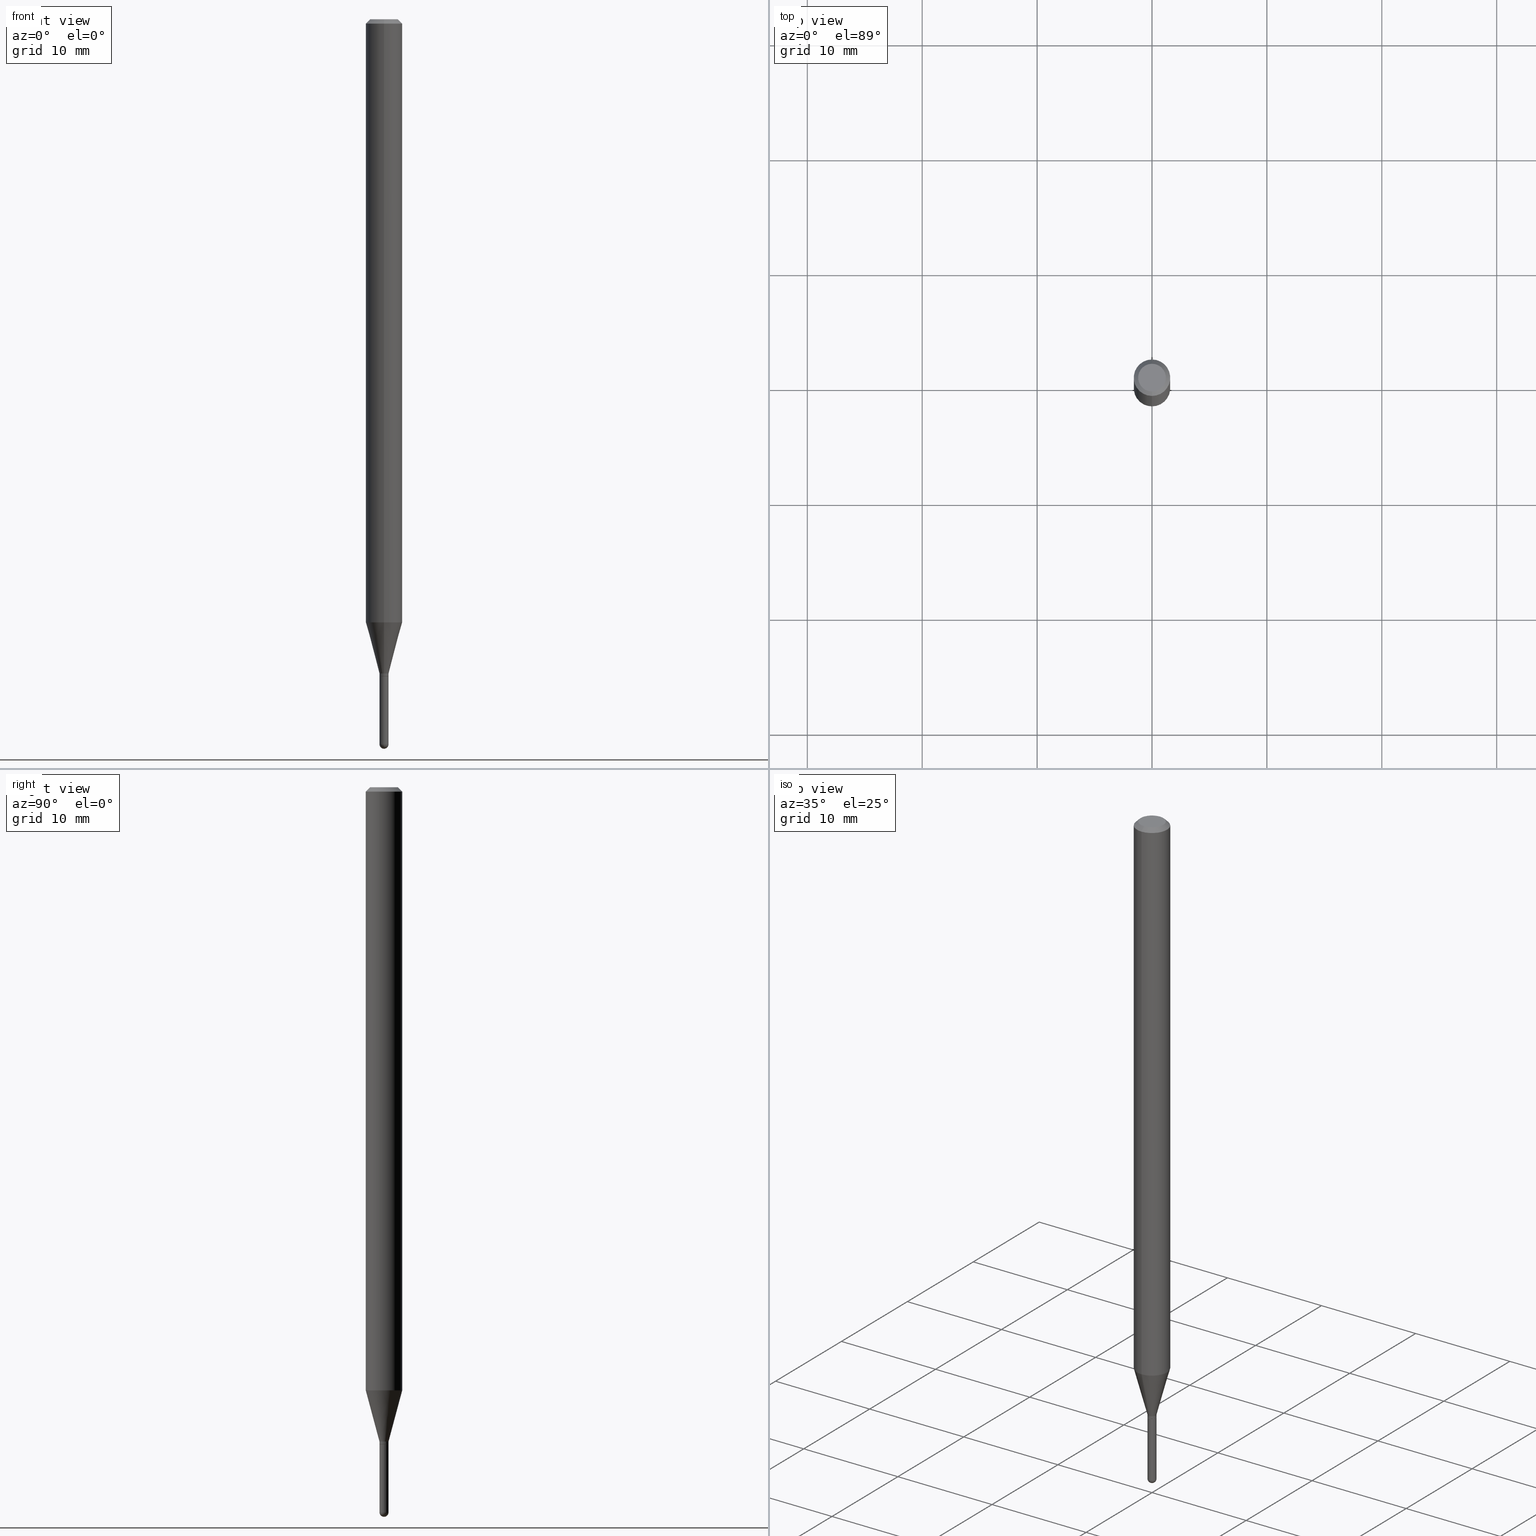
[diagram: canonical four-view strip — front | top / right | iso, engineering-drawing reading convention]
A machine part, canonical four-view strip (front | top / right | iso — engineering-drawing reading convention). The complete STEP part file that produces these views, byte-faithful:
ISO-10303-21;
HEADER;
FILE_DESCRIPTION (( 'STEP AP203' ),
    '1' );
FILE_NAME ('00984.STEP',
    '2024-03-07T19:28:21',
    ( '' ),
    ( '' ),
    'SwSTEP 2.0',
    'SolidWorks 2023',
    '' );
FILE_SCHEMA (( 'CONFIG_CONTROL_DESIGN' ));
ENDSEC;

DATA;
#1 = CARTESIAN_POINT ( 'NONE',  ( 5.507196632781506660E-29, -7.862814713070911262E-15, -2.251999999999999780 ) ) ;
#2 = ORIENTED_EDGE ( 'NONE', *, *, #315, .F. ) ;
#3 = DIRECTION ( 'NONE',  ( -2.445468806185136597E-29, 3.491481338843145583E-15, 1.000000000000000000 ) ) ;
#4 = FACE_OUTER_BOUND ( 'NONE', #159, .T. ) ;
#5 = EDGE_CURVE ( 'NONE', #226, #228, #463, .T. ) ;
#6 = CIRCLE ( 'NONE', #36, 0.01549999999999999989 ) ;
#7 = EDGE_LOOP ( 'NONE', ( #294, #34 ) ) ;
#8 = DIRECTION ( 'NONE',  ( 6.982962677686265922E-15, 1.000000000000000000, -3.491480778450671606E-15 ) ) ;
#9 = DIRECTION ( 'NONE',  ( -2.445469197505109755E-29, 3.491480778450671606E-15, 1.000000000000000000 ) ) ;
#10 = FACE_OUTER_BOUND ( 'NONE', #424, .T. ) ;
#11 = DIRECTION ( 'NONE',  ( -1.000000000000000000, 6.982962677686265922E-15, -4.883557194083112340E-29 ) ) ;
#12 = CARTESIAN_POINT ( 'NONE',  ( 0.01550000000000000509, -8.376936602219418168E-15, -2.484500000000000153 ) ) ;
#13 = VECTOR ( 'NONE', #297, 39.37007874015748143 ) ;
#14 = FACE_OUTER_BOUND ( 'NONE', #145, .T. ) ;
#15 = CARTESIAN_POINT ( 'NONE',  ( 0.01549999999999999989, -7.971051896578900839E-15, -2.252000000000000224 ) ) ;
#16 = CARTESIAN_POINT ( 'NONE',  ( 3.668203796257666962E-31, -5.237221167676010219E-17, -0.01500000000000000812 ) ) ;
#17 = COORDINATED_UNIVERSAL_TIME_OFFSET ( 5, 0, .BEHIND. ) ;
#18 = CIRCLE ( 'NONE', #99, 0.06250000000000000000 ) ;
#19 = CIRCLE ( 'NONE', #475, 0.01549999999999965121 ) ;
#20 = CARTESIAN_POINT ( 'NONE',  ( 3.840629472727447874E-16, 0.04749999999999999362, -1.747056831868805136E-16 ) ) ;
#21 = DATE_AND_TIME ( #383, #365 ) ;
#22 = ORIENTED_EDGE ( 'NONE', *, *, #423, .T. ) ;
#23 = VECTOR ( 'NONE', #117, 39.37007874015748143 ) ;
#24 =( GEOMETRIC_REPRESENTATION_CONTEXT ( 3 ) GLOBAL_UNCERTAINTY_ASSIGNED_CONTEXT ( ( #84 ) ) GLOBAL_UNIT_ASSIGNED_CONTEXT ( ( #449, #482, #210 ) ) REPRESENTATION_CONTEXT ( 'NONE', 'WORKASPACE' ) );
#25 = CYLINDRICAL_SURFACE ( 'NONE', #374, 0.06250000000000000000 ) ;
#26 = ORIENTED_EDGE ( 'NONE', *, *, #249, .F. ) ;
#27 = PERSON_AND_ORGANIZATION_ROLE ( 'design_owner' ) ;
#28 = ADVANCED_FACE ( 'NONE', ( #288 ), #381, .T. ) ;
#29 = CARTESIAN_POINT ( 'NONE',  ( 6.075767248966972494E-29, -8.674585386355795965E-15, -2.484500000000000153 ) ) ;
#30 = ORIENTED_EDGE ( 'NONE', *, *, #359, .F. ) ;
#31 = EDGE_LOOP ( 'NONE', ( #276, #108, #357, #2 ) ) ;
#32 = CARTESIAN_POINT ( 'NONE',  ( -0.01550000000000000162, 1.101341240428155403E-16, -7.624349389895103934E-31 ) ) ;
#33 = CARTESIAN_POINT ( 'NONE',  ( 1.101341240428677408E-16, 0.01549999999999173740, -2.251500000000000501 ) ) ;
#34 = ORIENTED_EDGE ( 'NONE', *, *, #359, .T. ) ;
#35 = AXIS2_PLACEMENT_3D ( 'NONE', #1, #75, #112 ) ;
#36 = AXIS2_PLACEMENT_3D ( 'NONE', #332, #247, #492 ) ;
#37 = CARTESIAN_POINT ( 'NONE',  ( 0.01550000000000000162, -1.082359215041371409E-16, 7.558074002483700794E-31 ) ) ;
#38 = ADVANCED_FACE ( 'NONE', ( #331 ), #451, .T. ) ;
#39 = DIRECTION ( 'NONE',  ( 1.000000000000000000, -6.982962677686266711E-15, 4.876176775795935232E-29 ) ) ;
#40 = CARTESIAN_POINT ( 'NONE',  ( -3.773273898774340269E-16, -0.04749999999999999362, 1.569849907659332327E-16 ) ) ;
#41 = PERSON_AND_ORGANIZATION_ROLE ( 'creator' ) ;
#42 = VERTEX_POINT ( 'NONE', #15 ) ;
#43 = PLANE ( 'NONE',  #35 ) ;
#44 = VECTOR ( 'NONE', #366, 39.37007874015748143 ) ;
#45 = EDGE_LOOP ( 'NONE', ( #64, #295, #353, #387 ) ) ;
#46 = CC_DESIGN_APPROVAL ( #358, ( #312 ) ) ;
#47 = CARTESIAN_POINT ( 'NONE',  ( 5.482741940806456285E-29, -7.827899905286405489E-15, -2.241999999999999993 ) ) ;
#48 = APPROVAL_DATE_TIME ( #479, #395 ) ;
#49 = DIRECTION ( 'NONE',  ( -6.982962677686265922E-15, -1.000000000000000000, 4.370956789862821150E-15 ) ) ;
#50 = DIRECTION ( 'NONE',  ( -2.445469197505109755E-29, 3.491480778450671606E-15, 1.000000000000000000 ) ) ;
#51 = CARTESIAN_POINT ( 'NONE',  ( 6.074441741218743853E-29, -8.676483588894474032E-15, -2.484500000000000153 ) ) ;
#52 = AXIS2_PLACEMENT_3D ( 'NONE', #275, #428, #227 ) ;
#53 = CIRCLE ( 'NONE', #158, 0.01549999999999993917 ) ;
#54 = ADVANCED_FACE ( 'NONE', ( #478 ), #473, .T. ) ;
#55 = ORIENTED_EDGE ( 'NONE', *, *, #173, .F. ) ;
#56 = CARTESIAN_POINT ( 'NONE',  ( 3.668203796257666962E-31, -5.237221167676010219E-17, -0.01500000000000000812 ) ) ;
#57 = DIRECTION ( 'NONE',  ( -6.982962677686265922E-15, -1.000000000000000000, 3.483106191921935554E-15 ) ) ;
#58 = SECURITY_CLASSIFICATION_LEVEL ( 'unclassified' ) ;
#59 = LOCAL_TIME ( 14, 28, 21.00000000000000000, #138 ) ;
#60 = CC_DESIGN_PERSON_AND_ORGANIZATION_ASSIGNMENT ( #342, #41, ( #335 ) ) ;
#61 = MANIFOLD_SOLID_BREP ( 'Body-Move/Copy2[1]', #132 ) ;
#62 = ORIENTED_EDGE ( 'NONE', *, *, #76, .T. ) ;
#63 = VERTEX_POINT ( 'NONE', #12 ) ;
#64 = ORIENTED_EDGE ( 'NONE', *, *, #349, .T. ) ;
#65 = CONICAL_SURFACE ( 'NONE', #178, 0.06250000000000000000, 0.7853981633974483900 ) ;
#66 = ORGANIZATION ( 'UNSPECIFIED', 'UNSPECIFIED', '' ) ;
#67 = VERTEX_POINT ( 'NONE', #123 ) ;
#68 = LINE ( 'NONE', #37, #13 ) ;
#69 = ORIENTED_EDGE ( 'NONE', *, *, #5, .F. ) ;
#70 = SPHERICAL_SURFACE ( 'NONE', #311, 0.01549999999999993917 ) ;
#71 = CARTESIAN_POINT ( 'NONE',  ( -4.364351673553912750E-16, -0.06250000000000005551, -0.01499999999999979128 ) ) ;
#72 = ADVANCED_FACE ( 'NONE', ( #281 ), #209, .T. ) ;
#73 = PRODUCT ( '00984', '00984', '', ( #324 ) ) ;
#74 = CONICAL_SURFACE ( 'NONE', #180, 0.01499999999999999944, 0.7853981633974739252 ) ;
#75 = DIRECTION ( 'NONE',  ( -2.445469197505109475E-29, 3.491480778450671606E-15, 1.000000000000000000 ) ) ;
#76 = EDGE_CURVE ( 'NONE', #67, #224, #116, .T. ) ;
#77 = CYLINDRICAL_SURFACE ( 'NONE', #255, 0.06250000000000000000 ) ;
#78 = ORIENTED_EDGE ( 'NONE', *, *, #219, .F. ) ;
#79 = ORIENTED_EDGE ( 'NONE', *, *, #249, .T. ) ;
#80 = APPLICATION_CONTEXT ( 'configuration controlled 3d designs of mechanical parts and assemblies' ) ;
#81 = CC_DESIGN_PERSON_AND_ORGANIZATION_ASSIGNMENT ( #217, #27, ( #73 ) ) ;
#82 = CLOSED_SHELL ( 'NONE', ( #38, #499, #152, #202, #28, #457, #412, #54, #441, #216, #425, #163 ) ) ;
#83 = VECTOR ( 'NONE', #270, 39.37007874015748143 ) ;
#84 = UNCERTAINTY_MEASURE_WITH_UNIT (LENGTH_MEASURE( 1.000000000000000082E-05 ), #449, 'distance_accuracy_value', 'NONE');
#85 = DIRECTION ( 'NONE',  ( -2.445468806185136597E-29, 3.491481338843145583E-15, 1.000000000000000000 ) ) ;
#86 = DIMENSIONAL_EXPONENTS ( 1.000000000000000000, 0.000000000000000000, 0.000000000000000000, 0.000000000000000000, 0.000000000000000000, 0.000000000000000000, 0.000000000000000000 ) ;
#87 = DIRECTION ( 'NONE',  ( 1.000000000000000000, 0.000000000000000000, 0.000000000000000000 ) ) ;
#88 = CARTESIAN_POINT ( 'NONE',  ( 5.507196632781506660E-29, -7.862814713070911262E-15, -2.251999999999999780 ) ) ;
#89 = CARTESIAN_POINT ( 'NONE',  ( 4.440892098501129061E-16, 0.06249999999999276967, -2.066593612044262507 ) ) ;
#90 = DIRECTION ( 'NONE',  ( 0.000000000000000000, 0.000000000000000000, 1.000000000000000000 ) ) ;
#91 = CARTESIAN_POINT ( 'NONE',  ( 1.101341240428130259E-16, 0.01549999999999964947, -5.411795206598418415E-17 ) ) ;
#92 = PERSON_AND_ORGANIZATION ( #326, #66 ) ;
#93 = CIRCLE ( 'NONE', #187, 0.01549999999999965121 ) ;
#94 = CARTESIAN_POINT ( 'NONE',  ( 5.507196632781506660E-29, -7.862814713070911262E-15, -2.251999999999999780 ) ) ;
#95 = DIRECTION ( 'NONE',  ( -7.105427357601001070E-15, -1.000000000000000000, 0.000000000000000000 ) ) ;
#96 = FACE_OUTER_BOUND ( 'NONE', #460, .T. ) ;
#97 = SHAPE_DEFINITION_REPRESENTATION ( #186, #348 ) ;
#98 = FACE_OUTER_BOUND ( 'NONE', #401, .T. ) ;
#99 = AXIS2_PLACEMENT_3D ( 'NONE', #480, #207, #322 ) ;
#100 = LOCAL_TIME ( 14, 28, 21.00000000000000000, #17 ) ;
#101 = ORIENTED_EDGE ( 'NONE', *, *, #468, .T. ) ;
#102 = DATE_AND_TIME ( #343, #100 ) ;
#103 = ORIENTED_EDGE ( 'NONE', *, *, #135, .T. ) ;
#104 = ORIENTED_EDGE ( 'NONE', *, *, #253, .T. ) ;
#105 = ORIENTED_EDGE ( 'NONE', *, *, #147, .T. ) ;
#106 = DIRECTION ( 'NONE',  ( 1.000000000000000000, -6.982962677686299843E-15, 0.000000000000000000 ) ) ;
#107 = CARTESIAN_POINT ( 'NONE',  ( -4.287811248607203282E-16, -0.06250000000000005551, -0.01499999999999979128 ) ) ;
#108 = ORIENTED_EDGE ( 'NONE', *, *, #488, .T. ) ;
#109 = FACE_OUTER_BOUND ( 'NONE', #504, .T. ) ;
#110 = EDGE_LOOP ( 'NONE', ( #436, #237, #298, #509 ) ) ;
#111 = EDGE_CURVE ( 'NONE', #351, #384, #201, .T. ) ;
#112 = DIRECTION ( 'NONE',  ( -6.982962677686265922E-15, -1.000000000000000000, 3.491480778450671606E-15 ) ) ;
#113 = CARTESIAN_POINT ( 'NONE',  ( 3.316907271900976096E-16, 0.04749999999999999362, -1.702755100816436749E-16 ) ) ;
#114 = DIRECTION ( 'NONE',  ( 2.445469197505109475E-29, -3.491480778450671606E-15, -1.000000000000000000 ) ) ;
#115 = ORIENTED_EDGE ( 'NONE', *, *, #111, .F. ) ;
#116 = CIRCLE ( 'NONE', #214, 0.01549999999999964947 ) ;
#117 = DIRECTION ( 'NONE',  ( -2.445468806185136877E-29, 3.491481338843145188E-15, 1.000000000000000000 ) ) ;
#118 = ORIENTED_EDGE ( 'NONE', *, *, #265, .F. ) ;
#119 = CARTESIAN_POINT ( 'NONE',  ( 6.075767248966972494E-29, -8.674585386355795965E-15, -2.484500000000000153 ) ) ;
#120 = EDGE_CURVE ( 'NONE', #233, #476, #93, .T. ) ;
#121 = DIRECTION ( 'NONE',  ( -2.445469197505109755E-29, 3.491480778450671606E-15, 1.000000000000000000 ) ) ;
#122 = AXIS2_PLACEMENT_3D ( 'NONE', #94, #370, #250 ) ;
#123 = CARTESIAN_POINT ( 'NONE',  ( 2.771116669464905946E-16, 0.01549999999999181893, -2.241999999999999993 ) ) ;
#124 = CC_DESIGN_SECURITY_CLASSIFICATION ( #312, ( #238 ) ) ;
#125 = CARTESIAN_POINT ( 'NONE',  ( 6.075767248966972494E-29, -8.674585386355795965E-15, -2.484500000000000153 ) ) ;
#126 = EDGE_CURVE ( 'NONE', #426, #351, #148, .T. ) ;
#127 = DIRECTION ( 'NONE',  ( 2.445469197505109755E-29, -3.491480778450671606E-15, -1.000000000000000000 ) ) ;
#128 = DIRECTION ( 'NONE',  ( 1.000000000000000000, -6.982962677686299843E-15, 0.000000000000000000 ) ) ;
#129 = DIRECTION ( 'NONE',  ( -6.982962677686265922E-15, -1.000000000000000000, 3.491480778450671606E-15 ) ) ;
#130 = CARTESIAN_POINT ( 'NONE',  ( 5.507196632781506660E-29, -7.862814713070911262E-15, -2.251999999999999780 ) ) ;
#131 = DIRECTION ( 'NONE',  ( -6.982962677686265922E-15, -1.000000000000000000, 0.000000000000000000 ) ) ;
#132 = CLOSED_SHELL ( 'NONE', ( #72, #200, #309, #306, #225 ) ) ;
#133 = CARTESIAN_POINT ( 'NONE',  ( 2.166770373694436936E-46, -3.093572848428689729E-32, -8.860346210473621970E-18 ) ) ;
#134 = AXIS2_PLACEMENT_3D ( 'NONE', #16, #251, #57 ) ;
#135 = EDGE_CURVE ( 'NONE', #233, #224, #444, .T. ) ;
#136 = PERSON_AND_ORGANIZATION ( #326, #66 ) ;
#137 = EDGE_CURVE ( 'NONE', #228, #226, #254, .T. ) ;
#138 = COORDINATED_UNIVERSAL_TIME_OFFSET ( 5, 0, .BEHIND. ) ;
#139 = ORIENTED_EDGE ( 'NONE', *, *, #397, .F. ) ;
#140 = AXIS2_PLACEMENT_3D ( 'NONE', #125, #489, #128 ) ;
#141 = CONICAL_SURFACE ( 'NONE', #280, 0.01549999999999964947, 0.2617993877991506291 ) ;
#142 = ORIENTED_EDGE ( 'NONE', *, *, #488, .F. ) ;
#143 = COORDINATED_UNIVERSAL_TIME_OFFSET ( 5, 0, .BEHIND. ) ;
#144 = ORIENTED_EDGE ( 'NONE', *, *, #373, .T. ) ;
#145 = EDGE_LOOP ( 'NONE', ( #139, #104, #361, #296 ) ) ;
#146 = DIRECTION ( 'NONE',  ( -6.982962677686265922E-15, -1.000000000000000000, 0.000000000000000000 ) ) ;
#147 = EDGE_CURVE ( 'NONE', #226, #233, #160, .T. ) ;
#148 = CIRCLE ( 'NONE', #157, 0.06250000000000000000 ) ;
#149 = EDGE_LOOP ( 'NONE', ( #472, #346, #101, #144 ) ) ;
#150 = CARTESIAN_POINT ( 'NONE',  ( -1.082359215040798499E-16, -0.01550000000000747828, -2.241999999999999993 ) ) ;
#151 = CARTESIAN_POINT ( 'NONE',  ( 6.074441741218743853E-29, -8.676483588894474032E-15, -2.484500000000000153 ) ) ;
#152 = ADVANCED_FACE ( 'NONE', ( #14 ), #65, .T. ) ;
#153 = ORIENTED_EDGE ( 'NONE', *, *, #173, .T. ) ;
#154 = DIRECTION ( 'NONE',  ( 1.000000000000000000, -6.982962677686299843E-15, 0.000000000000000000 ) ) ;
#155 = CARTESIAN_POINT ( 'NONE',  ( 0.000000000000000000, 0.000000000000000000, 0.000000000000000000 ) ) ;
#156 = AXIS2_PLACEMENT_3D ( 'NONE', #168, #477, #206 ) ;
#157 = AXIS2_PLACEMENT_3D ( 'NONE', #408, #50, #49 ) ;
#158 = AXIS2_PLACEMENT_3D ( 'NONE', #418, #495, #95 ) ;
#159 = EDGE_LOOP ( 'NONE', ( #388, #344 ) ) ;
#160 = LINE ( 'NONE', #417, #44 ) ;
#161 = CYLINDRICAL_SURFACE ( 'NONE', #362, 0.01549999999999964947 ) ;
#162 = PERSON_AND_ORGANIZATION ( #326, #66 ) ;
#163 = ADVANCED_FACE ( 'NONE', ( #10 ), #161, .T. ) ;
#164 = DIRECTION ( 'NONE',  ( 6.982962677686265922E-15, 1.000000000000000000, -3.483106191921935554E-15 ) ) ;
#165 = CALENDAR_DATE ( 2024, 7, 3 ) ;
#166 = CC_DESIGN_PERSON_AND_ORGANIZATION_ASSIGNMENT ( #212, #350, ( #312 ) ) ;
#167 = CARTESIAN_POINT ( 'NONE',  ( 3.668203796257666962E-31, -5.237221167676010219E-17, -0.01500000000000000812 ) ) ;
#168 = CARTESIAN_POINT ( 'NONE',  ( 1.082359215041921886E-16, 0.01549999999999213639, -2.252000000000000224 ) ) ;
#169 = DIRECTION ( 'NONE',  ( 2.445469197505109755E-29, -3.491480778450671606E-15, -1.000000000000000000 ) ) ;
#170 = APPROVAL_ROLE ( '' ) ;
#171 = DIRECTION ( 'NONE',  ( -2.445469197505110035E-29, 3.491480778450671606E-15, 1.000000000000000000 ) ) ;
#172 = VECTOR ( 'NONE', #469, 39.37007874015748143 ) ;
#173 = EDGE_CURVE ( 'NONE', #476, #67, #446, .T. ) ;
#174 = APPROVAL_DATE_TIME ( #421, #358 ) ;
#175 = VECTOR ( 'NONE', #512, 39.37007874015748143 ) ;
#176 = FACE_OUTER_BOUND ( 'NONE', #110, .T. ) ;
#177 = APPROVAL_DATE_TIME ( #21, #244 ) ;
#178 = AXIS2_PLACEMENT_3D ( 'NONE', #167, #127, #164 ) ;
#179 = ORIENTED_EDGE ( 'NONE', *, *, #265, .T. ) ;
#180 = AXIS2_PLACEMENT_3D ( 'NONE', #229, #271, #146 ) ;
#181 = SPHERICAL_SURFACE ( 'NONE', #456, 0.01549999999999993917 ) ;
#182 = VERTEX_POINT ( 'NONE', #490 ) ;
#183 = ORIENTED_EDGE ( 'NONE', *, *, #120, .T. ) ;
#184 = EDGE_CURVE ( 'NONE', #351, #426, #18, .T. ) ;
#185 = VERTEX_POINT ( 'NONE', #486 ) ;
#186 = PRODUCT_DEFINITION_SHAPE ( 'NONE', 'NONE',  #335 ) ;
#187 = AXIS2_PLACEMENT_3D ( 'NONE', #369, #242, #197 ) ;
#188 = ORIENTED_EDGE ( 'NONE', *, *, #367, .F. ) ;
#189 = CARTESIAN_POINT ( 'NONE',  ( -1.082359215040798499E-16, -0.01550000000000747828, -2.241999999999999993 ) ) ;
#190 = LINE ( 'NONE', #231, #427 ) ;
#191 = CARTESIAN_POINT ( 'NONE',  ( -4.364351673553412316E-16, -0.06250000000000721645, -2.066593612044262063 ) ) ;
#192 = ORIENTED_EDGE ( 'NONE', *, *, #382, .T. ) ;
#193 = VERTEX_POINT ( 'NONE', #493 ) ;
#194 = CARTESIAN_POINT ( 'NONE',  ( 1.083577672034691034E-16, 0.01499999999999213768, -2.251999999999999780 ) ) ;
#195 = DIRECTION ( 'NONE',  ( -6.982962677686266711E-15, -1.000000000000000000, 3.491480778450672789E-15 ) ) ;
#196 = LOCAL_TIME ( 14, 28, 21.00000000000000000, #317 ) ;
#197 = DIRECTION ( 'NONE',  ( -6.982962677686265922E-15, -1.000000000000000000, 0.000000000000000000 ) ) ;
#198 = DIRECTION ( 'NONE',  ( -2.445469197505110035E-29, 3.491480778450671606E-15, 1.000000000000000000 ) ) ;
#199 = PERSON_AND_ORGANIZATION_ROLE ( 'creator' ) ;
#200 = ADVANCED_FACE ( 'NONE', ( #503 ), #181, .T. ) ;
#201 = LINE ( 'NONE', #284, #272 ) ;
#202 = ADVANCED_FACE ( 'NONE', ( #176 ), #25, .T. ) ;
#203 = CIRCLE ( 'NONE', #338, 0.01550000000000000336 ) ;
#204 = CARTESIAN_POINT ( 'NONE',  ( -1.082359215041346757E-16, -0.01549999999999964947, 5.411795206598418415E-17 ) ) ;
#205 = AXIS2_PLACEMENT_3D ( 'NONE', #208, #90, #87 ) ;
#206 = DIRECTION ( 'NONE',  ( -1.000000000000000000, 6.982962677686265922E-15, -4.876176775795935793E-29 ) ) ;
#207 = DIRECTION ( 'NONE',  ( -2.445469197505109755E-29, 3.491480778450671606E-15, 1.000000000000000000 ) ) ;
#208 = CARTESIAN_POINT ( 'NONE',  ( 0.000000000000000000, 0.000000000000000000, 0.000000000000000000 ) ) ;
#209 = CYLINDRICAL_SURFACE ( 'NONE', #345, 0.01550000000000000162 ) ;
#210 =( NAMED_UNIT ( * ) SI_UNIT ( $, .STERADIAN. ) SOLID_ANGLE_UNIT ( ) );
#211 = CARTESIAN_POINT ( 'NONE',  ( 4.440892098501133991E-16, 0.06249999999999993755, -0.01500000000000022669 ) ) ;
#212 = PERSON_AND_ORGANIZATION ( #326, #66 ) ;
#213 = CARTESIAN_POINT ( 'NONE',  ( 6.074441741218743853E-29, -8.676483588894474032E-15, -2.484500000000000153 ) ) ;
#214 = AXIS2_PLACEMENT_3D ( 'NONE', #47, #121, #411 ) ;
#215 = APPROVAL_STATUS ( 'not_yet_approved' ) ;
#216 = ADVANCED_FACE ( 'NONE', ( #98 ), #43, .F. ) ;
#217 = PERSON_AND_ORGANIZATION ( #326, #66 ) ;
#218 = ORIENTED_EDGE ( 'NONE', *, *, #508, .F. ) ;
#219 = EDGE_CURVE ( 'NONE', #228, #476, #190, .T. ) ;
#220 = APPROVAL_ROLE ( '' ) ;
#221 = CIRCLE ( 'NONE', #279, 0.01550000000000000336 ) ;
#222 = ORIENTED_EDGE ( 'NONE', *, *, #349, .F. ) ;
#223 = AXIS2_PLACEMENT_3D ( 'NONE', #461, #470, #106 ) ;
#224 = VERTEX_POINT ( 'NONE', #150 ) ;
#225 = ADVANCED_FACE ( 'NONE', ( #393 ), #402, .T. ) ;
#226 = VERTEX_POINT ( 'NONE', #465 ) ;
#227 = DIRECTION ( 'NONE',  ( -6.982962677686266711E-15, -1.000000000000000000, 3.491480778450672789E-15 ) ) ;
#228 = VERTEX_POINT ( 'NONE', #194 ) ;
#229 = CARTESIAN_POINT ( 'NONE',  ( 5.507196632781506660E-29, -7.862814713070911262E-15, -2.251999999999999780 ) ) ;
#230 = ORIENTED_EDGE ( 'NONE', *, *, #496, .T. ) ;
#231 = CARTESIAN_POINT ( 'NONE',  ( 1.065814103640700963E-16, 0.01499999999999213768, -2.251999999999999780 ) ) ;
#232 = FACE_OUTER_BOUND ( 'NONE', #440, .T. ) ;
#233 = VERTEX_POINT ( 'NONE', #507 ) ;
#234 = DIRECTION ( 'NONE',  ( 5.024295867788190974E-15, 0.7071067811865681119, 0.7071067811865270336 ) ) ;
#235 = DIRECTION ( 'NONE',  ( 6.982962677686265922E-15, 1.000000000000000000, 0.000000000000000000 ) ) ;
#236 = CIRCLE ( 'NONE', #52, 0.04749999999999999362 ) ;
#237 = ORIENTED_EDGE ( 'NONE', *, *, #111, .T. ) ;
#238 = PRODUCT_DEFINITION_FORMATION_WITH_SPECIFIED_SOURCE ( 'ANY', '', #73, .NOT_KNOWN. ) ;
#239 = DIRECTION ( 'NONE',  ( -6.982962677686265922E-15, -1.000000000000000000, 3.491480778450671606E-15 ) ) ;
#240 = ORIENTED_EDGE ( 'NONE', *, *, #367, .T. ) ;
#241 = DATE_TIME_ROLE ( 'creation_date' ) ;
#242 = DIRECTION ( 'NONE',  ( -2.445469197505109755E-29, 3.491480778450671606E-15, 1.000000000000000000 ) ) ;
#243 = CALENDAR_DATE ( 2024, 7, 3 ) ;
#244 = APPROVAL ( #215, 'UNSPECIFIED' ) ;
#245 = APPLICATION_PROTOCOL_DEFINITION ( 'international standard', 'config_control_design', 1994, #310 ) ;
#246 = DIRECTION ( 'NONE',  ( 1.000000000000000000, -6.982962677686266711E-15, 4.876176775795935232E-29 ) ) ;
#247 = DIRECTION ( 'NONE',  ( -2.445468806185136597E-29, 3.491481338843145583E-15, 1.000000000000000000 ) ) ;
#248 = CIRCLE ( 'NONE', #262, 0.01549999999999993917 ) ;
#249 = EDGE_CURVE ( 'NONE', #185, #193, #352, .T. ) ;
#250 = DIRECTION ( 'NONE',  ( -6.982962677686265922E-15, -1.000000000000000000, 0.000000000000000000 ) ) ;
#251 = DIRECTION ( 'NONE',  ( -2.445469197505109755E-29, 3.491480778450671606E-15, 1.000000000000000000 ) ) ;
#252 = DIRECTION ( 'NONE',  ( 6.982962677686265922E-15, 1.000000000000000000, 0.000000000000000000 ) ) ;
#253 = EDGE_CURVE ( 'NONE', #398, #458, #314, .T. ) ;
#254 = CIRCLE ( 'NONE', #122, 0.01499999999999999944 ) ;
#255 = AXIS2_PLACEMENT_3D ( 'NONE', #155, #438, #239 ) ;
#256 = EDGE_LOOP ( 'NONE', ( #179, #79, #218, #268, #430 ) ) ;
#257 = DATE_TIME_ROLE ( 'classification_date' ) ;
#258 = EDGE_LOOP ( 'NONE', ( #142, #192, #263, #118 ) ) ;
#259 = EDGE_CURVE ( 'NONE', #458, #384, #404, .T. ) ;
#260 = ORIENTED_EDGE ( 'NONE', *, *, #315, .T. ) ;
#261 = CARTESIAN_POINT ( 'NONE',  ( -4.364351673553916201E-16, -0.06250000000000000000, 2.182175486531669754E-16 ) ) ;
#262 = AXIS2_PLACEMENT_3D ( 'NONE', #151, #305, #235 ) ;
#263 = ORIENTED_EDGE ( 'NONE', *, *, #330, .F. ) ;
#264 = ORIENTED_EDGE ( 'NONE', *, *, #5, .T. ) ;
#265 = EDGE_CURVE ( 'NONE', #455, #185, #203, .T. ) ;
#266 = DIRECTION ( 'NONE',  ( -6.982962677686265922E-15, -1.000000000000000000, 3.483106191921935554E-15 ) ) ;
#267 = LINE ( 'NONE', #394, #83 ) ;
#268 = ORIENTED_EDGE ( 'NONE', *, *, #423, .F. ) ;
#269 = CARTESIAN_POINT ( 'NONE',  ( 3.668203796257666962E-31, -5.237221167676010219E-17, -0.01500000000000000812 ) ) ;
#270 = DIRECTION ( 'NONE',  ( 4.937700262164548042E-15, 0.7071067811865451302, -0.7071067811865499042 ) ) ;
#271 = DIRECTION ( 'NONE',  ( -2.445469197505109755E-29, 3.491480778450671606E-15, 1.000000000000000000 ) ) ;
#272 = VECTOR ( 'NONE', #198, 39.37007874015748143 ) ;
#273 = APPROVAL_PERSON_ORGANIZATION ( #347, #244, #220 ) ;
#274 = ORIENTED_EDGE ( 'NONE', *, *, #277, .T. ) ;
#275 = CARTESIAN_POINT ( 'NONE',  ( 2.166770373694436936E-46, -3.093572848428689729E-32, -8.860346210473621970E-18 ) ) ;
#276 = ORIENTED_EDGE ( 'NONE', *, *, #382, .F. ) ;
#277 = EDGE_CURVE ( 'NONE', #426, #458, #389, .T. ) ;
#278 = DIRECTION ( 'NONE',  ( -1.807323732225332900E-15, -0.2588190451025185190, 0.9659258262890689783 ) ) ;
#279 = AXIS2_PLACEMENT_3D ( 'NONE', #119, #321, #484 ) ;
#280 = AXIS2_PLACEMENT_3D ( 'NONE', #431, #303, #467 ) ;
#281 = FACE_OUTER_BOUND ( 'NONE', #256, .T. ) ;
#282 = CARTESIAN_POINT ( 'NONE',  ( 0.000000000000000000, 0.000000000000000000, 0.000000000000000000 ) ) ;
#283 = DIRECTION ( 'NONE',  ( -2.445469197505109755E-29, 3.491480778450671606E-15, 1.000000000000000000 ) ) ;
#284 = CARTESIAN_POINT ( 'NONE',  ( 4.440892098500625669E-16, 0.06250000000000000000, -2.182175486531669754E-16 ) ) ;
#285 = DATE_AND_TIME ( #243, #442 ) ;
#286 = VECTOR ( 'NONE', #171, 39.37007874015748143 ) ;
#287 = CIRCLE ( 'NONE', #223, 0.01550000000000000336 ) ;
#288 = FACE_OUTER_BOUND ( 'NONE', #45, .T. ) ;
#289 = CARTESIAN_POINT ( 'NONE',  ( 5.505973898182755598E-29, -7.861068972681687630E-15, -2.251500000000000501 ) ) ;
#290 = APPROVAL_STATUS ( 'not_yet_approved' ) ;
#291 = EDGE_CURVE ( 'NONE', #505, #398, #236, .T. ) ;
#292 = CC_DESIGN_DATE_AND_TIME_ASSIGNMENT ( #285, #241, ( #335 ) ) ;
#293 = ORIENTED_EDGE ( 'NONE', *, *, #137, .F. ) ;
#294 = ORIENTED_EDGE ( 'NONE', *, *, #508, .T. ) ;
#295 = ORIENTED_EDGE ( 'NONE', *, *, #481, .T. ) ;
#296 = ORIENTED_EDGE ( 'NONE', *, *, #468, .F. ) ;
#297 = DIRECTION ( 'NONE',  ( -2.445468806185136877E-29, 3.491481338843145188E-15, 1.000000000000000000 ) ) ;
#298 = ORIENTED_EDGE ( 'NONE', *, *, #259, .F. ) ;
#299 = AXIS2_PLACEMENT_3D ( 'NONE', #56, #169, #376 ) ;
#300 = FACE_OUTER_BOUND ( 'NONE', #31, .T. ) ;
#301 = APPROVAL_PERSON_ORGANIZATION ( #92, #395, #170 ) ;
#302 = EDGE_LOOP ( 'NONE', ( #183, #153, #222, #500 ) ) ;
#303 = DIRECTION ( 'NONE',  ( -2.445469197505109755E-29, 3.491480778450671606E-15, 1.000000000000000000 ) ) ;
#304 = CARTESIAN_POINT ( 'NONE',  ( 0.000000000000000000, 0.000000000000000000, 0.000000000000000000 ) ) ;
#305 = DIRECTION ( 'NONE',  ( 1.000000000000000000, -6.982962677686265922E-15, 4.883557194083112340E-29 ) ) ;
#306 = ADVANCED_FACE ( 'NONE', ( #300 ), #70, .T. ) ;
#307 = DIRECTION ( 'NONE',  ( -2.445469197505109755E-29, 3.491480778450671606E-15, 1.000000000000000000 ) ) ;
#308 = ORIENTED_EDGE ( 'NONE', *, *, #219, .T. ) ;
#309 = ADVANCED_FACE ( 'NONE', ( #434 ), #328, .F. ) ;
#310 = APPLICATION_CONTEXT ( 'configuration controlled 3d designs of mechanical parts and assemblies' ) ;
#311 = AXIS2_PLACEMENT_3D ( 'NONE', #51, #11, #371 ) ;
#312 = SECURITY_CLASSIFICATION ( '', '', #58 ) ;
#313 = ORIENTED_EDGE ( 'NONE', *, *, #373, .F. ) ;
#314 = LINE ( 'NONE', #107, #172 ) ;
#315 = EDGE_CURVE ( 'NONE', #182, #63, #221, .T. ) ;
#316 = DIRECTION ( 'NONE',  ( -6.982962677686265922E-15, -1.000000000000000000, 3.491480778450671606E-15 ) ) ;
#317 = COORDINATED_UNIVERSAL_TIME_OFFSET ( 5, 0, .BEHIND. ) ;
#318 = CC_DESIGN_PERSON_AND_ORGANIZATION_ASSIGNMENT ( #162, #372, ( #238 ) ) ;
#319 =( LENGTH_UNIT ( ) NAMED_UNIT ( * ) SI_UNIT ( $, .METRE. ) );
#320 = ORIENTED_EDGE ( 'NONE', *, *, #147, .F. ) ;
#321 = DIRECTION ( 'NONE',  ( -2.445468806185136597E-29, 3.491481338843145583E-15, 1.000000000000000000 ) ) ;
#322 = DIRECTION ( 'NONE',  ( -6.982962677686265922E-15, -1.000000000000000000, 4.370956789862821150E-15 ) ) ;
#323 = AXIS2_PLACEMENT_3D ( 'NONE', #88, #415, #131 ) ;
#324 = MECHANICAL_CONTEXT ( 'NONE', #310, 'mechanical' ) ;
#325 = AXIS2_PLACEMENT_3D ( 'NONE', #333, #329, #416 ) ;
#326 = PERSON ( 'UNSPECIFIED', 'UNSPECIFIED', 'UNSPECIFIED', ('UNSPECIFIED'), ('UNSPECIFIED'), ('UNSPECIFIED') ) ;
#327 = ORIENTED_EDGE ( 'NONE', *, *, #184, .F. ) ;
#328 = PLANE ( 'NONE',  #156 ) ;
#329 = DIRECTION ( 'NONE',  ( -2.445468806185136597E-29, 3.491481338843145583E-15, 1.000000000000000000 ) ) ;
#330 = EDGE_CURVE ( 'NONE', #185, #182, #354, .T. ) ;
#331 = FACE_OUTER_BOUND ( 'NONE', #302, .T. ) ;
#332 = CARTESIAN_POINT ( 'NONE',  ( 5.507195751528928549E-29, -7.862815975074764463E-15, -2.252000000000000224 ) ) ;
#333 = CARTESIAN_POINT ( 'NONE',  ( 5.507195751528928549E-29, -7.862815975074764463E-15, -2.252000000000000224 ) ) ;
#334 = DIRECTION ( 'NONE',  ( -2.445469197505110035E-29, 3.491480778450671606E-15, 1.000000000000000000 ) ) ;
#335 = PRODUCT_DEFINITION ( 'UNKNOWN', '', #238, #385 ) ;
#336 = CARTESIAN_POINT ( 'NONE',  ( 6.113009261588727732E-29, -8.729652448377203187E-15, -2.500000000000000000 ) ) ;
#337 = DIRECTION ( 'NONE',  ( -6.982962677686265922E-15, -1.000000000000000000, 0.000000000000000000 ) ) ;
#338 = AXIS2_PLACEMENT_3D ( 'NONE', #29, #3, #154 ) ;
#339 = CIRCLE ( 'NONE', #134, 0.06250000000000000000 ) ;
#340 = DIRECTION ( 'NONE',  ( -6.982962677686265922E-15, -1.000000000000000000, 3.491480778450671606E-15 ) ) ;
#341 = PRODUCT_RELATED_PRODUCT_CATEGORY ( 'detail', '', ( #73 ) ) ;
#342 = PERSON_AND_ORGANIZATION ( #326, #66 ) ;
#343 = CALENDAR_DATE ( 2024, 7, 3 ) ;
#344 = ORIENTED_EDGE ( 'NONE', *, *, #397, .T. ) ;
#345 = AXIS2_PLACEMENT_3D ( 'NONE', #443, #85, #246 ) ;
#346 = ORIENTED_EDGE ( 'NONE', *, *, #291, .F. ) ;
#347 = PERSON_AND_ORGANIZATION ( #326, #66 ) ;
#348 = ADVANCED_BREP_SHAPE_REPRESENTATION ( '00984', ( #61, #399, #205 ), #24 ) ;
#349 = EDGE_CURVE ( 'NONE', #224, #67, #501, .T. ) ;
#350 = PERSON_AND_ORGANIZATION_ROLE ( 'classification_officer' ) ;
#351 = VERTEX_POINT ( 'NONE', #89 ) ;
#352 = LINE ( 'NONE', #32, #23 ) ;
#353 = ORIENTED_EDGE ( 'NONE', *, *, #126, .F. ) ;
#354 = CIRCLE ( 'NONE', #140, 0.01550000000000000336 ) ;
#355 = CONICAL_SURFACE ( 'NONE', #502, 0.01499999999999999944, 0.7853981633974739252 ) ;
#356 = CARTESIAN_POINT ( 'NONE',  ( 1.101341240428678394E-16, 0.01549999999999182067, -2.241999999999999993 ) ) ;
#357 = ORIENTED_EDGE ( 'NONE', *, *, #453, .F. ) ;
#358 = APPROVAL ( #290, 'UNSPECIFIED' ) ;
#359 = EDGE_CURVE ( 'NONE', #193, #42, #6, .T. ) ;
#360 = DIRECTION ( 'NONE',  ( -2.445469197505109755E-29, 3.491480778450671606E-15, 1.000000000000000000 ) ) ;
#361 = ORIENTED_EDGE ( 'NONE', *, *, #259, .T. ) ;
#362 = AXIS2_PLACEMENT_3D ( 'NONE', #282, #491, #129 ) ;
#363 = PLANE ( 'NONE',  #375 ) ;
#364 = COORDINATED_UNIVERSAL_TIME_OFFSET ( 5, 0, .BEHIND. ) ;
#365 = LOCAL_TIME ( 14, 28, 21.00000000000000000, #143 ) ;
#366 = DIRECTION ( 'NONE',  ( -4.937700262164674260E-15, -0.7071067811865632269, 0.7071067811865319186 ) ) ;
#367 = EDGE_CURVE ( 'NONE', #476, #233, #19, .T. ) ;
#368 = APPROVAL_STATUS ( 'not_yet_approved' ) ;
#369 = CARTESIAN_POINT ( 'NONE',  ( 5.505973898182755598E-29, -7.861068972681687630E-15, -2.251500000000000501 ) ) ;
#370 = DIRECTION ( 'NONE',  ( -2.445469197505109755E-29, 3.491480778450671606E-15, 1.000000000000000000 ) ) ;
#371 = DIRECTION ( 'NONE',  ( 6.982962677686265922E-15, 1.000000000000000000, 0.000000000000000000 ) ) ;
#372 = PERSON_AND_ORGANIZATION_ROLE ( 'design_supplier' ) ;
#373 = EDGE_CURVE ( 'NONE', #384, #458, #339, .T. ) ;
#374 = AXIS2_PLACEMENT_3D ( 'NONE', #419, #379, #340 ) ;
#375 = AXIS2_PLACEMENT_3D ( 'NONE', #113, #114, #8 ) ;
#376 = DIRECTION ( 'NONE',  ( 6.982962677686265922E-15, 1.000000000000000000, -3.483106191921935554E-15 ) ) ;
#377 = CARTESIAN_POINT ( 'NONE',  ( 0.000000000000000000, 0.000000000000000000, 0.000000000000000000 ) ) ;
#378 = DIRECTION ( 'NONE',  ( -6.982962677686265922E-15, -1.000000000000000000, 0.000000000000000000 ) ) ;
#379 = DIRECTION ( 'NONE',  ( -2.445469197505109755E-29, 3.491480778450671606E-15, 1.000000000000000000 ) ) ;
#380 = DIRECTION ( 'NONE',  ( -2.445469197505109755E-29, 3.491480778450671606E-15, 1.000000000000000000 ) ) ;
#381 = CONICAL_SURFACE ( 'NONE', #413, 0.01549999999999964947, 0.2617993877991506291 ) ;
#382 = EDGE_CURVE ( 'NONE', #390, #182, #53, .T. ) ;
#383 = CALENDAR_DATE ( 2024, 7, 3 ) ;
#384 = VERTEX_POINT ( 'NONE', #211 ) ;
#385 = DESIGN_CONTEXT ( 'detailed design', #80, 'design' ) ;
#386 = VECTOR ( 'NONE', #474, 39.37007874015748143 ) ;
#387 = ORIENTED_EDGE ( 'NONE', *, *, #496, .F. ) ;
#388 = ORIENTED_EDGE ( 'NONE', *, *, #291, .T. ) ;
#389 = LINE ( 'NONE', #261, #386 ) ;
#390 = VERTEX_POINT ( 'NONE', #336 ) ;
#391 = CARTESIAN_POINT ( 'NONE',  ( 1.082359215041976613E-16, 0.01549999999999129678, -2.484500000000000153 ) ) ;
#392 = ORIENTED_EDGE ( 'NONE', *, *, #120, .F. ) ;
#393 = FACE_OUTER_BOUND ( 'NONE', #432, .T. ) ;
#394 = CARTESIAN_POINT ( 'NONE',  ( 4.364351673553919652E-16, 0.06249999999999995143, -0.01500000000000022669 ) ) ;
#395 = APPROVAL ( #368, 'UNSPECIFIED' ) ;
#396 = LINE ( 'NONE', #189, #464 ) ;
#397 = EDGE_CURVE ( 'NONE', #398, #505, #450, .T. ) ;
#398 = VERTEX_POINT ( 'NONE', #40 ) ;
#399 = MANIFOLD_SOLID_BREP ( 'Body-Move/Copy2[2]', #82 ) ;
#400 = DIRECTION ( 'NONE',  ( -2.445468806185136597E-29, 3.491481338843145583E-15, 1.000000000000000000 ) ) ;
#401 = EDGE_LOOP ( 'NONE', ( #69, #293 ) ) ;
#402 = CYLINDRICAL_SURFACE ( 'NONE', #485, 0.01550000000000000162 ) ;
#403 = ORIENTED_EDGE ( 'NONE', *, *, #137, .T. ) ;
#404 = CIRCLE ( 'NONE', #437, 0.06250000000000000000 ) ;
#405 = AXIS2_PLACEMENT_3D ( 'NONE', #133, #307, #195 ) ;
#406 = DIRECTION ( 'NONE',  ( -2.445469197505109755E-29, 3.491480778450671606E-15, 1.000000000000000000 ) ) ;
#407 = LENGTH_MEASURE_WITH_UNIT ( LENGTH_MEASURE( 0.02539999999999999897 ), #319 );
#408 = CARTESIAN_POINT ( 'NONE',  ( 5.053791022015068069E-29, -7.215471873321485568E-15, -2.066593612044262507 ) ) ;
#409 = CARTESIAN_POINT ( 'NONE',  ( 5.482741940806456285E-29, -7.827899905286405489E-15, -2.241999999999999993 ) ) ;
#410 = PERSON_AND_ORGANIZATION ( #326, #66 ) ;
#411 = DIRECTION ( 'NONE',  ( -6.982962677686265922E-15, -1.000000000000000000, 0.000000000000000000 ) ) ;
#412 = ADVANCED_FACE ( 'NONE', ( #232 ), #77, .T. ) ;
#413 = AXIS2_PLACEMENT_3D ( 'NONE', #494, #9, #483 ) ;
#414 = CC_DESIGN_APPROVAL ( #244, ( #335 ) ) ;
#415 = DIRECTION ( 'NONE',  ( -2.445469197505109755E-29, 3.491480778450671606E-15, 1.000000000000000000 ) ) ;
#416 = DIRECTION ( 'NONE',  ( 1.000000000000000000, -6.982962677686238312E-15, 0.000000000000000000 ) ) ;
#417 = CARTESIAN_POINT ( 'NONE',  ( -1.047444401652389135E-16, -0.01500000000000786295, -2.251999999999999780 ) ) ;
#418 = CARTESIAN_POINT ( 'NONE',  ( 6.074441741218743853E-29, -8.676483588894474032E-15, -2.484500000000000153 ) ) ;
#419 = CARTESIAN_POINT ( 'NONE',  ( 0.000000000000000000, 0.000000000000000000, 0.000000000000000000 ) ) ;
#420 = CC_DESIGN_PERSON_AND_ORGANIZATION_ASSIGNMENT ( #410, #199, ( #238 ) ) ;
#421 = DATE_AND_TIME ( #454, #59 ) ;
#422 = APPROVAL_ROLE ( '' ) ;
#423 = EDGE_CURVE ( 'NONE', #63, #42, #68, .T. ) ;
#424 = EDGE_LOOP ( 'NONE', ( #55, #240, #103, #429 ) ) ;
#425 = ADVANCED_FACE ( 'NONE', ( #510 ), #74, .T. ) ;
#426 = VERTEX_POINT ( 'NONE', #191 ) ;
#427 = VECTOR ( 'NONE', #234, 39.37007874015748143 ) ;
#428 = DIRECTION ( 'NONE',  ( -2.445469197505109755E-29, 3.491480778450671606E-15, 1.000000000000000000 ) ) ;
#429 = ORIENTED_EDGE ( 'NONE', *, *, #76, .F. ) ;
#430 = ORIENTED_EDGE ( 'NONE', *, *, #453, .T. ) ;
#431 = CARTESIAN_POINT ( 'NONE',  ( 5.482741940806456285E-29, -7.827899905286405489E-15, -2.241999999999999993 ) ) ;
#432 = EDGE_LOOP ( 'NONE', ( #26, #439, #260, #22, #30 ) ) ;
#433 = CC_DESIGN_DATE_AND_TIME_ASSIGNMENT ( #102, #257, ( #312 ) ) ;
#434 = FACE_OUTER_BOUND ( 'NONE', #7, .T. ) ;
#435 = LINE ( 'NONE', #356, #175 ) ;
#436 = ORIENTED_EDGE ( 'NONE', *, *, #126, .T. ) ;
#437 = AXIS2_PLACEMENT_3D ( 'NONE', #269, #360, #266 ) ;
#438 = DIRECTION ( 'NONE',  ( -2.445469197505109755E-29, 3.491480778450671606E-15, 1.000000000000000000 ) ) ;
#439 = ORIENTED_EDGE ( 'NONE', *, *, #330, .T. ) ;
#440 = EDGE_LOOP ( 'NONE', ( #115, #466, #274, #313 ) ) ;
#441 = ADVANCED_FACE ( 'NONE', ( #4 ), #363, .F. ) ;
#442 = LOCAL_TIME ( 14, 28, 21.00000000000000000, #364 ) ;
#443 = CARTESIAN_POINT ( 'NONE',  ( 0.000000000000000000, 0.000000000000000000, 0.000000000000000000 ) ) ;
#444 = LINE ( 'NONE', #204, #511 ) ;
#445 = DIRECTION ( 'NONE',  ( -6.982962677686265922E-15, -1.000000000000000000, 0.000000000000000000 ) ) ;
#446 = LINE ( 'NONE', #91, #286 ) ;
#447 = AXIS2_PLACEMENT_3D ( 'NONE', #377, #406, #316 ) ;
#448 = CC_DESIGN_APPROVAL ( #395, ( #238 ) ) ;
#449 =( CONVERSION_BASED_UNIT ( 'INCH', #407 ) LENGTH_UNIT ( ) NAMED_UNIT ( #86 ) );
#450 = CIRCLE ( 'NONE', #405, 0.04749999999999999362 ) ;
#451 = CYLINDRICAL_SURFACE ( 'NONE', #447, 0.01549999999999964947 ) ;
#452 = DIRECTION ( 'NONE',  ( -2.445469197505109755E-29, 3.491480778450671606E-15, 1.000000000000000000 ) ) ;
#453 = EDGE_CURVE ( 'NONE', #63, #455, #287, .T. ) ;
#454 = CALENDAR_DATE ( 2024, 7, 3 ) ;
#455 = VERTEX_POINT ( 'NONE', #391 ) ;
#456 = AXIS2_PLACEMENT_3D ( 'NONE', #213, #459, #252 ) ;
#457 = ADVANCED_FACE ( 'NONE', ( #109 ), #141, .T. ) ;
#458 = VERTEX_POINT ( 'NONE', #71 ) ;
#459 = DIRECTION ( 'NONE',  ( -1.000000000000000000, 6.982962677686265922E-15, -4.883557194083112340E-29 ) ) ;
#460 = EDGE_LOOP ( 'NONE', ( #264, #308, #392, #320 ) ) ;
#461 = CARTESIAN_POINT ( 'NONE',  ( 6.075767248966972494E-29, -8.674585386355795965E-15, -2.484500000000000153 ) ) ;
#462 = APPLICATION_PROTOCOL_DEFINITION ( 'international standard', 'config_control_design', 1994, #80 ) ;
#463 = CIRCLE ( 'NONE', #323, 0.01499999999999999944 ) ;
#464 = VECTOR ( 'NONE', #278, 39.37007874015748854 ) ;
#465 = CARTESIAN_POINT ( 'NONE',  ( -1.047444401652389135E-16, -0.01500000000000786295, -2.251999999999999780 ) ) ;
#466 = ORIENTED_EDGE ( 'NONE', *, *, #184, .T. ) ;
#467 = DIRECTION ( 'NONE',  ( -6.982962677686265922E-15, -1.000000000000000000, 0.000000000000000000 ) ) ;
#468 = EDGE_CURVE ( 'NONE', #505, #384, #267, .T. ) ;
#469 = DIRECTION ( 'NONE',  ( -4.851104656540964275E-15, -0.7071067811865500152, -0.7071067811865450192 ) ) ;
#470 = DIRECTION ( 'NONE',  ( -2.445468806185136597E-29, 3.491481338843145583E-15, 1.000000000000000000 ) ) ;
#471 = ORIENTED_EDGE ( 'NONE', *, *, #481, .F. ) ;
#472 = ORIENTED_EDGE ( 'NONE', *, *, #253, .F. ) ;
#473 = CONICAL_SURFACE ( 'NONE', #299, 0.06250000000000000000, 0.7853981633974483900 ) ;
#474 = DIRECTION ( 'NONE',  ( -2.445469197505110035E-29, 3.491480778450671606E-15, 1.000000000000000000 ) ) ;
#475 = AXIS2_PLACEMENT_3D ( 'NONE', #289, #452, #378 ) ;
#476 = VERTEX_POINT ( 'NONE', #33 ) ;
#477 = DIRECTION ( 'NONE',  ( 2.438088387897960049E-29, -3.491481338843145188E-15, -1.000000000000000000 ) ) ;
#478 = FACE_OUTER_BOUND ( 'NONE', #149, .T. ) ;
#479 = DATE_AND_TIME ( #165, #196 ) ;
#480 = CARTESIAN_POINT ( 'NONE',  ( 5.053791022015068069E-29, -7.215471873321485568E-15, -2.066593612044262507 ) ) ;
#481 = EDGE_CURVE ( 'NONE', #67, #351, #435, .T. ) ;
#482 =( NAMED_UNIT ( * ) PLANE_ANGLE_UNIT ( ) SI_UNIT ( $, .RADIAN. ) );
#483 = DIRECTION ( 'NONE',  ( -6.982962677686265922E-15, -1.000000000000000000, 0.000000000000000000 ) ) ;
#484 = DIRECTION ( 'NONE',  ( 1.000000000000000000, -6.982962677686299843E-15, 0.000000000000000000 ) ) ;
#485 = AXIS2_PLACEMENT_3D ( 'NONE', #304, #400, #39 ) ;
#486 = CARTESIAN_POINT ( 'NONE',  ( -0.01550000000000000509, -8.158566556672464193E-15, -2.484500000000000153 ) ) ;
#487 = CIRCLE ( 'NONE', #325, 0.01549999999999999989 ) ;
#488 = EDGE_CURVE ( 'NONE', #390, #455, #248, .T. ) ;
#489 = DIRECTION ( 'NONE',  ( -2.445468806185136597E-29, 3.491481338843145583E-15, 1.000000000000000000 ) ) ;
#490 = CARTESIAN_POINT ( 'NONE',  ( -1.101341240427545639E-16, -0.01550000000000864749, -2.484500000000000153 ) ) ;
#491 = DIRECTION ( 'NONE',  ( -2.445469197505109755E-29, 3.491480778450671606E-15, 1.000000000000000000 ) ) ;
#492 = DIRECTION ( 'NONE',  ( 1.000000000000000000, -6.982962677686238312E-15, 0.000000000000000000 ) ) ;
#493 = CARTESIAN_POINT ( 'NONE',  ( -0.01549999999999999989, -8.158566556672464193E-15, -2.252000000000000224 ) ) ;
#494 = CARTESIAN_POINT ( 'NONE',  ( 5.482741940806456285E-29, -7.827899905286405489E-15, -2.241999999999999993 ) ) ;
#495 = DIRECTION ( 'NONE',  ( -1.000000000000000000, 7.105427357601001070E-15, -4.926315508542082329E-29 ) ) ;
#496 = EDGE_CURVE ( 'NONE', #224, #426, #396, .T. ) ;
#497 = AXIS2_PLACEMENT_3D ( 'NONE', #409, #283, #445 ) ;
#498 = APPROVAL_PERSON_ORGANIZATION ( #136, #358, #422 ) ;
#499 = ADVANCED_FACE ( 'NONE', ( #96 ), #355, .T. ) ;
#500 = ORIENTED_EDGE ( 'NONE', *, *, #135, .F. ) ;
#501 = CIRCLE ( 'NONE', #497, 0.01549999999999964947 ) ;
#502 = AXIS2_PLACEMENT_3D ( 'NONE', #130, #380, #337 ) ;
#503 = FACE_OUTER_BOUND ( 'NONE', #258, .T. ) ;
#504 = EDGE_LOOP ( 'NONE', ( #471, #62, #230, #327 ) ) ;
#505 = VERTEX_POINT ( 'NONE', #20 ) ;
#506 = EDGE_LOOP ( 'NONE', ( #78, #403, #105, #188 ) ) ;
#507 = CARTESIAN_POINT ( 'NONE',  ( -1.082359215040799855E-16, -0.01550000000000756502, -2.251500000000000501 ) ) ;
#508 = EDGE_CURVE ( 'NONE', #42, #193, #487, .T. ) ;
#509 = ORIENTED_EDGE ( 'NONE', *, *, #277, .F. ) ;
#510 = FACE_OUTER_BOUND ( 'NONE', #506, .T. ) ;
#511 = VECTOR ( 'NONE', #334, 39.37007874015748143 ) ;
#512 = DIRECTION ( 'NONE',  ( 1.839019923739602682E-15, 0.2588190451025252914, 0.9659258262890670910 ) ) ;
ENDSEC;
END-ISO-10303-21;
